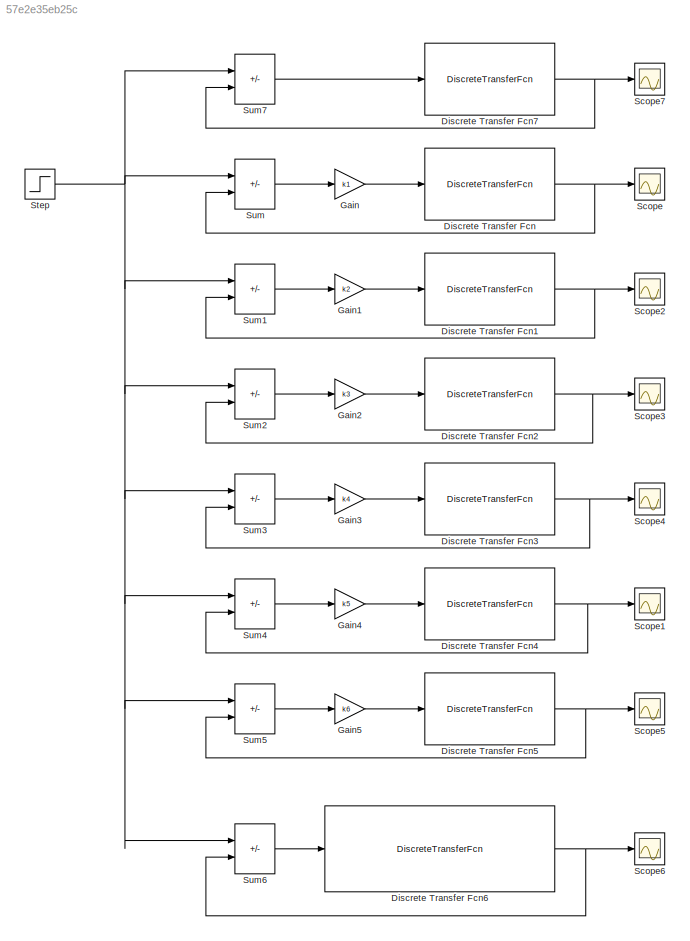
MODEL slx_57e2e35eb25c
KIND model
CONFIG AbsTol = auto
CONFIG EnableMultiTasking = off
CONFIG FixedStep = auto
CONFIG MaxStep = auto
CONFIG MinStep = auto
CONFIG RelTol = 1e-3
CONFIG SampleTimeConstraint = Unconstrained
CONFIG SolverName = VariableStepAuto
CONFIG StartTime = 0.0
CONFIG StopTime = 10
BLOCK [DiscreteTransferFcn] Discrete Transfer Fcn
  Denominator = [1 -1.2 0.2]
  InputPortMap = u0
  Numerator = [0.2 0.5]
  SampleTime = 0.005
BLOCK [DiscreteTransferFcn] Discrete Transfer Fcn1
  Denominator = [1 -1.2 0.2]
  InputPortMap = u0
  Numerator = [0.2 0.5]
  SampleTime = 0.005
BLOCK [DiscreteTransferFcn] Discrete Transfer Fcn2
  Denominator = [1 -1.2 0.2]
  InputPortMap = u0
  Numerator = [0.2 0.5]
  SampleTime = 0.005
BLOCK [DiscreteTransferFcn] Discrete Transfer Fcn3
  Denominator = [1 -1.2 0.2]
  InputPortMap = u0
  Numerator = [0.2 0.5]
  SampleTime = 0.005
BLOCK [DiscreteTransferFcn] Discrete Transfer Fcn4
  Denominator = [1 -1.2 0.2]
  InputPortMap = u0
  Numerator = [0.2 0.5]
  SampleTime = 0.005
BLOCK [DiscreteTransferFcn] Discrete Transfer Fcn5
  Denominator = [1 -1.2 0.2]
  InputPortMap = u0
  Numerator = [0.2 0.5]
  SampleTime = 0.005
BLOCK [DiscreteTransferFcn] Discrete Transfer Fcn6
  Denominator = [ 1 -2 1.4 -1.1 ]
  InputPortMap = u0
  Numerator = [ 1 ]
  SampleTime = 0.005
BLOCK [DiscreteTransferFcn] Discrete Transfer Fcn7
  Denominator = [1 -1.2 0.2]
  InputPortMap = u0
  Numerator = [0.2 0.5]
  SampleTime = 0.005
BLOCK [Gain] Gain
  Gain = k1
BLOCK [Gain] Gain1
  Gain = k2
BLOCK [Gain] Gain2
  Gain = k3
BLOCK [Gain] Gain3
  Gain = k4
BLOCK [Gain] Gain4
  Gain = k5
BLOCK [Gain] Gain5
  Gain = k6
BLOCK [Scope] Scope
  Floating = off
  NumInputPorts = 1
  ScopeSpecificationString = Simulink.scopes.TimeScopeBlockCfg('CurrentConfiguration', extmgr.ConfigurationSet(extmgr.Configuration('Core','General UI',true),extmgr.Configuration('Core','Source UI',true),extmgr.Configuration('Sources','WiredSimulink',true),extmgr.Configuration('Visuals','Time Domain',true,'SerializedDisplays',{struct('MinYLimReal','-0.19125','MaxYLimReal','1.72125','YLabelReal','','MinYLimMag','0.00000','MaxY...<+1485ch>
BLOCK [Scope] Scope1
  Floating = off
  NumInputPorts = 1
  ScopeSpecificationString = Simulink.scopes.TimeScopeBlockCfg('CurrentConfiguration', extmgr.ConfigurationSet(extmgr.Configuration('Core','General UI',true),extmgr.Configuration('Core','Source UI',true),extmgr.Configuration('Sources','WiredSimulink',true,'DataLoggingVariableName','ScopeData1'),extmgr.Configuration('Visuals','Time Domain',true,'SerializedDisplays',{struct('MinYLimReal','-62128077171.71547','MaxYLimReal','6300...<+1548ch>
BLOCK [Scope] Scope2
  Floating = off
  NumInputPorts = 1
  ScopeSpecificationString = Simulink.scopes.TimeScopeBlockCfg('CurrentConfiguration', extmgr.ConfigurationSet(extmgr.Configuration('Core','General UI',true),extmgr.Configuration('Core','Source UI',true),extmgr.Configuration('Sources','WiredSimulink',true,'DataLoggingVariableName','ScopeData2'),extmgr.Configuration('Visuals','Time Domain',true,'SerializedDisplays',{struct('MinYLimReal','-0.14046','MaxYLimReal','1.26412','YLab...<+1499ch>
BLOCK [Scope] Scope3
  Floating = off
  NumInputPorts = 1
  ScopeSpecificationString = Simulink.scopes.TimeScopeBlockCfg('CurrentConfiguration', extmgr.ConfigurationSet(extmgr.Configuration('Core','General UI',true),extmgr.Configuration('Core','Source UI',true),extmgr.Configuration('Sources','WiredSimulink',true,'DataLoggingVariableName','ScopeData3'),extmgr.Configuration('Visuals','Time Domain',true,'SerializedDisplays',{struct('MinYLimReal','-30381200546782012238784700353296365243...<+3482ch>
BLOCK [Scope] Scope4
  Floating = off
  NumInputPorts = 1
  ScopeSpecificationString = Simulink.scopes.TimeScopeBlockCfg('CurrentConfiguration', extmgr.ConfigurationSet(extmgr.Configuration('Core','General UI',true),extmgr.Configuration('Core','Source UI',true),extmgr.Configuration('Sources','WiredSimulink',true,'DataLoggingVariableName','ScopeData4'),extmgr.Configuration('Visuals','Time Domain',true,'SerializedDisplays',{struct('MinYLimReal','-0.23332','MaxYLimReal','2.09992','YLab...<+1470ch>
BLOCK [Scope] Scope5
  Floating = off
  NumInputPorts = 1
  ScopeSpecificationString = Simulink.scopes.TimeScopeBlockCfg('CurrentConfiguration', extmgr.ConfigurationSet(extmgr.Configuration('Core','General UI',true),extmgr.Configuration('Core','Source UI',true),extmgr.Configuration('Sources','WiredSimulink',true,'DataLoggingVariableName','ScopeData5'),extmgr.Configuration('Visuals','Time Domain',true,'SerializedDisplays',{struct('MinYLimReal','-18617867697389221374345650826058092865...<+2153ch>
BLOCK [Scope] Scope6
  Floating = off
  NumInputPorts = 1
  ScopeSpecificationString = Simulink.scopes.TimeScopeBlockCfg('CurrentConfiguration', extmgr.ConfigurationSet(extmgr.Configuration('Core','General UI',true),extmgr.Configuration('Core','Source UI',true),extmgr.Configuration('Sources','WiredSimulink',true,'DataLoggingVariableName','ScopeData6'),extmgr.Configuration('Visuals','Time Domain',true,'SerializedDisplays',{struct('MinYLimReal','-70358632288784404038393583276453922465...<+2282ch>
BLOCK [Scope] Scope7
  Floating = off
  NumInputPorts = 1
  ScopeSpecificationString = Simulink.scopes.TimeScopeBlockCfg('CurrentConfiguration', extmgr.ConfigurationSet(extmgr.Configuration('Core','General UI',true),extmgr.Configuration('Core','Source UI',true),extmgr.Configuration('Sources','WiredSimulink',true,'DataLoggingVariableName','ScopeData1'),extmgr.Configuration('Visuals','Time Domain',true,'SerializedDisplays',{struct('MinYLimReal','-0.19125','MaxYLimReal','1.72125','YLab...<+1470ch>
BLOCK [Step] Step
  SampleTime = 0.1
  Time = 0
BLOCK [Sum] Sum
  IconShape = rectangular
  Inputs = |+-
BLOCK [Sum] Sum1
  IconShape = rectangular
  Inputs = |+-
BLOCK [Sum] Sum2
  IconShape = rectangular
  Inputs = |+-
BLOCK [Sum] Sum3
  IconShape = rectangular
  Inputs = |+-
BLOCK [Sum] Sum4
  IconShape = rectangular
  Inputs = |+-
BLOCK [Sum] Sum5
  IconShape = rectangular
  Inputs = |+-
BLOCK [Sum] Sum6
  IconShape = rectangular
  Inputs = |+-
BLOCK [Sum] Sum7
  IconShape = rectangular
  Inputs = |+-
NET Discrete Transfer Fcn1:1 -> Scope2:1, Sum1:2
NET Discrete Transfer Fcn2:1 -> Scope3:1, Sum2:2
NET Discrete Transfer Fcn3:1 -> Scope4:1, Sum3:2
NET Discrete Transfer Fcn4:1 -> Scope1:1, Sum4:2
NET Discrete Transfer Fcn5:1 -> Scope5:1, Sum5:2
NET Discrete Transfer Fcn6:1 -> Scope6:1, Sum6:2
NET Discrete Transfer Fcn7:1 -> Scope7:1, Sum7:2
NET Discrete Transfer Fcn:1 -> Scope:1, Sum:2
LINE Gain1:1 -> Discrete Transfer Fcn1:1
LINE Gain2:1 -> Discrete Transfer Fcn2:1
LINE Gain3:1 -> Discrete Transfer Fcn3:1
LINE Gain4:1 -> Discrete Transfer Fcn4:1
LINE Gain5:1 -> Discrete Transfer Fcn5:1
LINE Gain:1 -> Discrete Transfer Fcn:1
NET Step:1 -> Sum1:1, Sum2:1, Sum3:1, Sum4:1, Sum5:1, Sum6:1, Sum7:1, Sum:1
LINE Sum1:1 -> Gain1:1
LINE Sum2:1 -> Gain2:1
LINE Sum3:1 -> Gain3:1
LINE Sum4:1 -> Gain4:1
LINE Sum5:1 -> Gain5:1
LINE Sum6:1 -> Discrete Transfer Fcn6:1
LINE Sum7:1 -> Discrete Transfer Fcn7:1
LINE Sum:1 -> Gain:1
note: NET lines group one-source signal fan-out (src -> all destinations, sorted); 1:1 wires keep LINE
